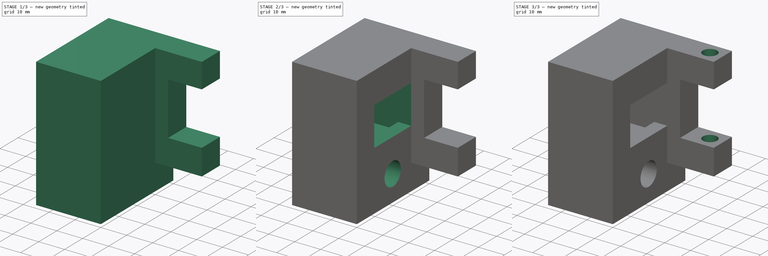
[diagram: build sequence overview — one tinted view per stage of 3, left to right]
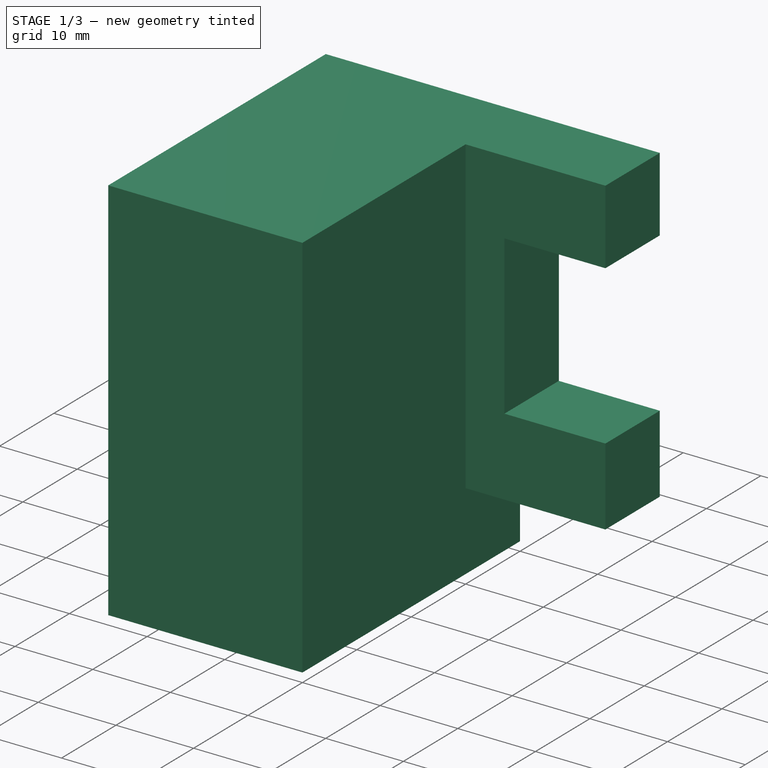
[diagram: stage 1 of 3 — iso view after this stage's code; geometry added in this stage tinted green]
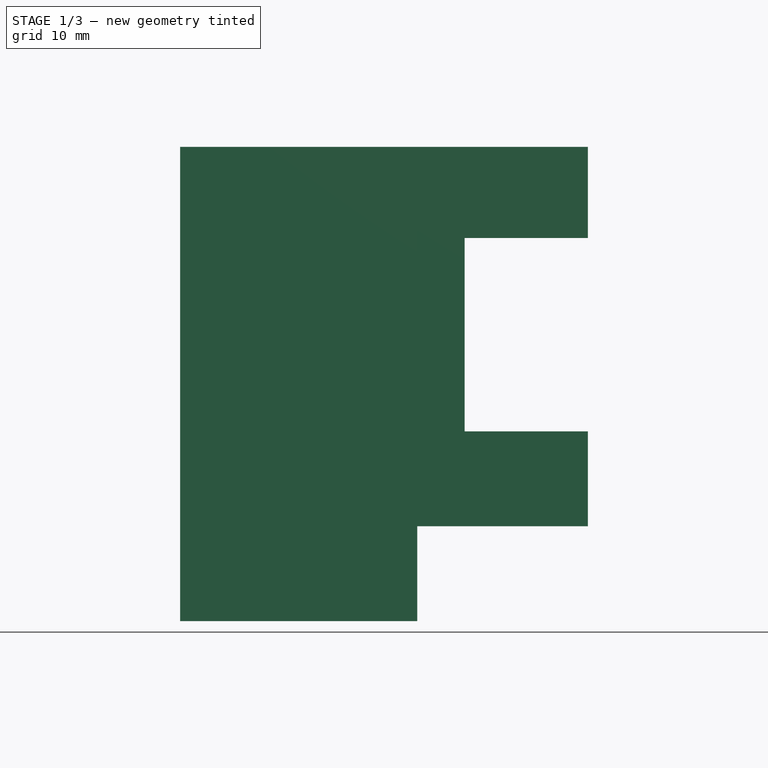
[diagram: stage 1 of 3 — front view after this stage's code; geometry added in this stage tinted green]
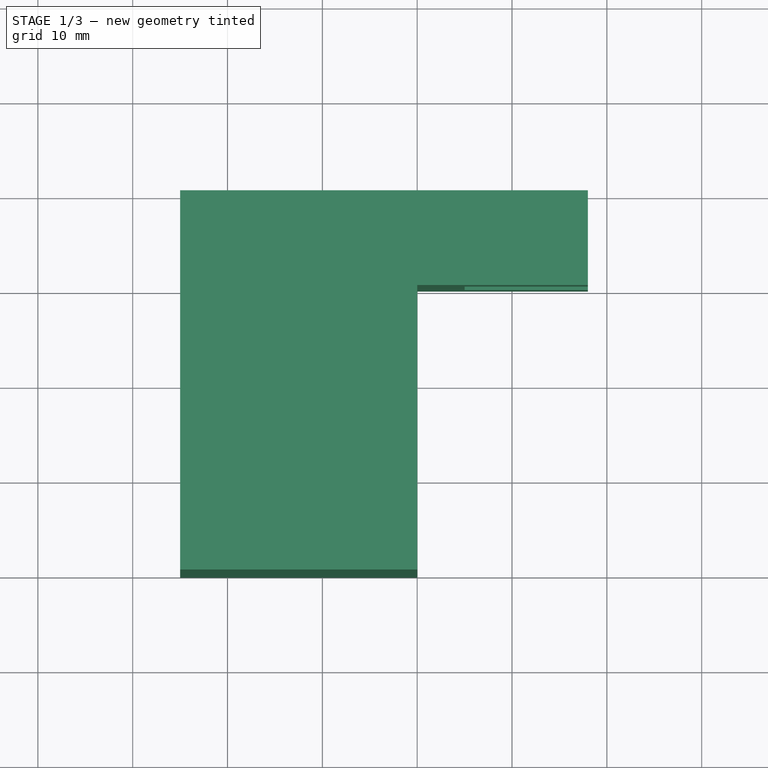
[diagram: stage 1 of 3 — top view after this stage's code; geometry added in this stage tinted green]
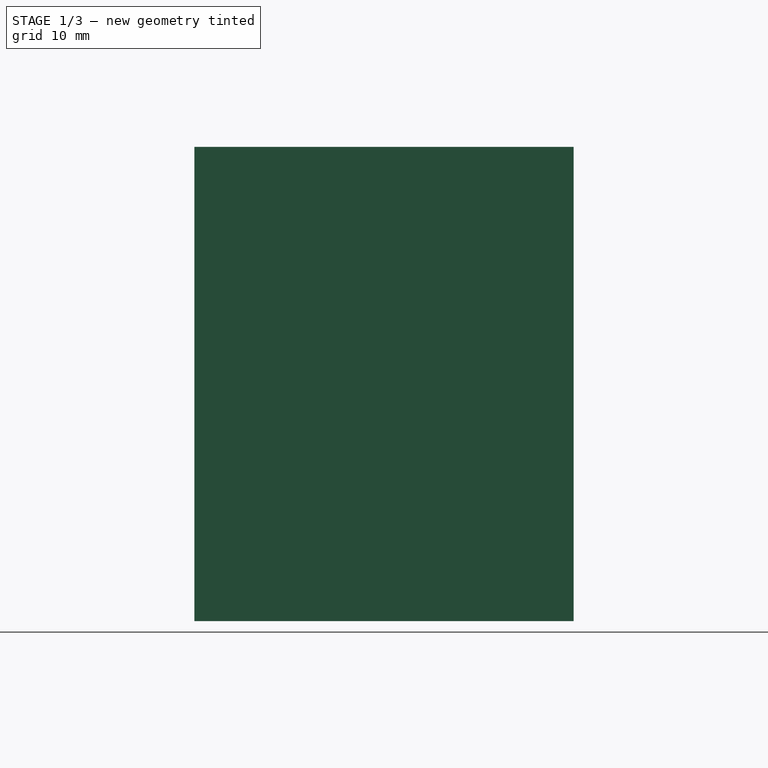
[diagram: stage 1 of 3 — right view after this stage's code; geometry added in this stage tinted green]
FCSTD DOCUMENT  (FreeCAD 0.19R24267 +148 (Git))
Label: Feed pully
License: All rights reserved
LicenseURL: http://en.wikipedia.org/wiki/All_rights_reserved
objects: Sketcher::SketchObject×6, PartDesign::Pocket×3, PartDesign::Hole×2, PartDesign::Pad×1, PartDesign::Chamfer×1, PartDesign::Body×1
note: 21 computed .brp shape members not serialized (recipe doc carries the construction recipe); baked Part::Feature solids carry a one-line shape summary decoded from their .brp

FEATURE [Sketcher::SketchObject] Sketch
  FullyConstrained = true
  MapMode = 5
  Support = -> [XY_Plane]
  sketch-geometry (6):
    g0: LineSegment StartX=0 StartY=0 StartZ=0 EndX=18 EndY=0 EndZ=0
    g1: LineSegment StartX=18 StartY=0 StartZ=0 EndX=18 EndY=10 EndZ=0
    g2: LineSegment StartX=18 StartY=10 StartZ=0 EndX=-25 EndY=10 EndZ=0
    g3: LineSegment StartX=-25 StartY=10 StartZ=0 EndX=-25 EndY=-30 EndZ=0
    g4: LineSegment StartX=-25 StartY=-30 StartZ=0 EndX=0 EndY=-30 EndZ=0
    g5: LineSegment StartX=0 StartY=-30 StartZ=0 EndX=0 EndY=0 EndZ=0
  constraints (17):
    c: Coincident(g0,g-1)
    c: PointOnObject(g0,g-1)
    c: Coincident(g1,g0)
    c: Vertical(g1)
    c: Coincident(g2,g1)
    c: Horizontal(g2)
    c: Coincident(g3,g2)
    c: Vertical(g3)
    c: Coincident(g4,g3)
    c: PointOnObject(g4,g-2)
    c: Horizontal(g4)
    c: Coincident(g5,g4)
    c: Coincident(g5,g0)
    c: DistanceY(g1,g1) = 10
    c: DistanceX(g0,g0) = 18
    c: DistanceY(g3,g3) = 40
    c: DistanceX(g4,g4) = 25
FEATURE [PartDesign::Pad] Pad
  Direction = (1,1,1)
  Length = 50
  Length2 = 100
  Profile = -> Sketch
  Type = 0
FEATURE [Sketcher::SketchObject] Sketch001
  ExternalGeometry = -> [Pad]
  FullyConstrained = true
  MapMode = 5
  Placement = pos=(0,0,0) rot=(1,0,0;1.5708rad)
  Support = -> [XZ_Plane]
  sketch-geometry (8):
    g0: LineSegment StartX=5 StartY=40.4 StartZ=0 EndX=18 EndY=40.4 EndZ=0
    g1: LineSegment StartX=18 StartY=40.4 StartZ=0 EndX=18 EndY=20 EndZ=0
    g2: LineSegment StartX=18 StartY=20 StartZ=0 EndX=5 EndY=20 EndZ=0
    g3: LineSegment StartX=5 StartY=20 StartZ=0 EndX=5 EndY=40.4 EndZ=0
    g4: LineSegment StartX=0 StartY=10 StartZ=0 EndX=18 EndY=10 EndZ=0
    g5: LineSegment StartX=18 StartY=10 StartZ=0 EndX=18 EndY=0 EndZ=0
    g6: LineSegment StartX=18 StartY=0 StartZ=0 EndX=0 EndY=0 EndZ=0
    g7: LineSegment StartX=0 StartY=0 StartZ=0 EndX=0 EndY=10 EndZ=0
  constraints (23):
    c: Coincident(g0,g1)
    c: Coincident(g1,g2)
    c: Coincident(g2,g3)
    c: Coincident(g3,g0)
    c: Horizontal(g0)
    c: Horizontal(g2)
    c: Vertical(g1)
    c: Vertical(g3)
    c: Coincident(g4,g5)
    c: Coincident(g5,g6)
    c: Coincident(g6,g7)
    c: Coincident(g7,g4)
    c: Horizontal(g4)
    c: Horizontal(g6)
    c: Vertical(g5)
    c: Vertical(g7)
    c: Coincident(g6,g-1)
    c: PointOnObject(g-3,g1)
    c: PointOnObject(g-3,g5)
    c: DistanceX(g0,g0) = 13
    c: DistanceY(g4,g1) = 10
    c: DistanceY(g1,g1) = 20.4
    c: DistanceY(g5,g1) = 20
FEATURE [PartDesign::Pocket] Pocket
  BaseFeature = -> Pad
  Length = 5
  Length2 = 100
  Profile = -> Sketch001
  Type = 1
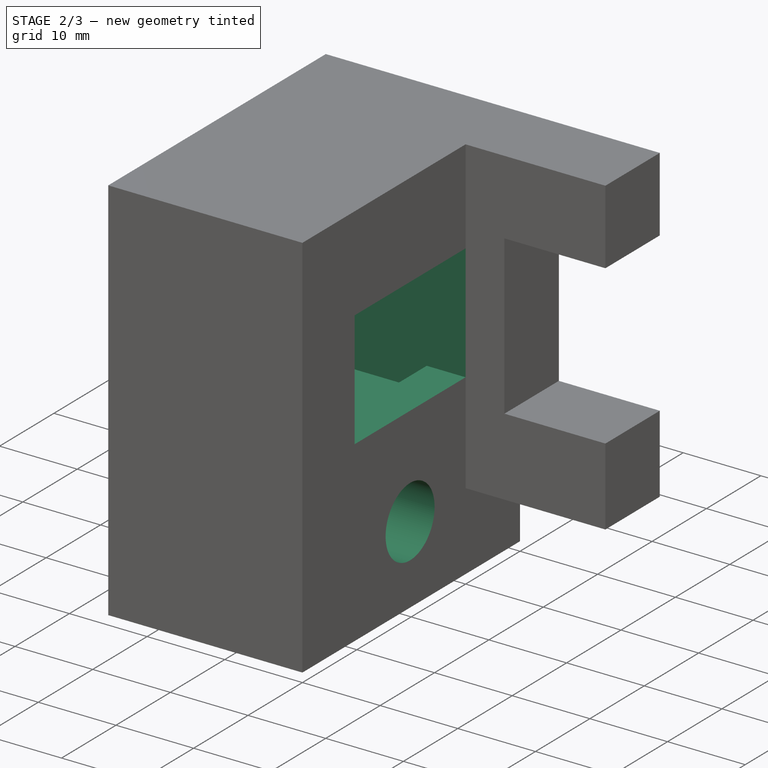
[diagram: stage 2 of 3 — iso view after this stage's code; geometry added in this stage tinted green]
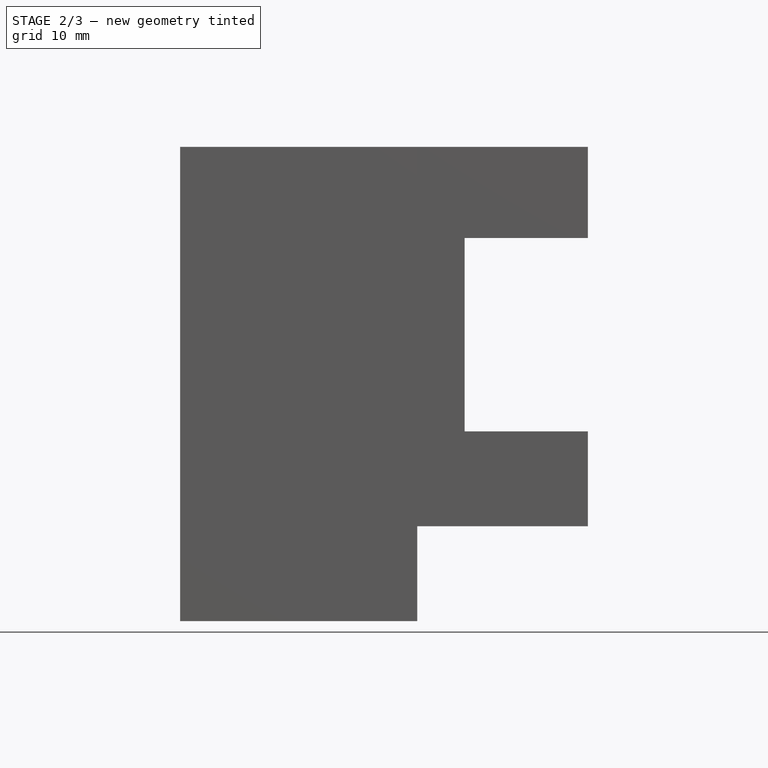
[diagram: stage 2 of 3 — front view after this stage's code; geometry added in this stage tinted green]
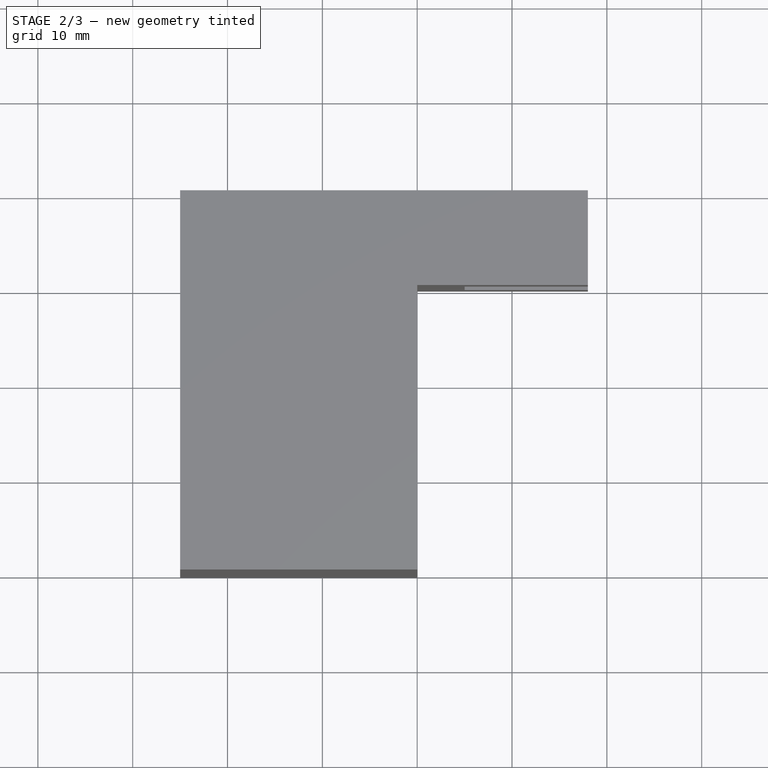
[diagram: stage 2 of 3 — top view after this stage's code; geometry added in this stage tinted green]
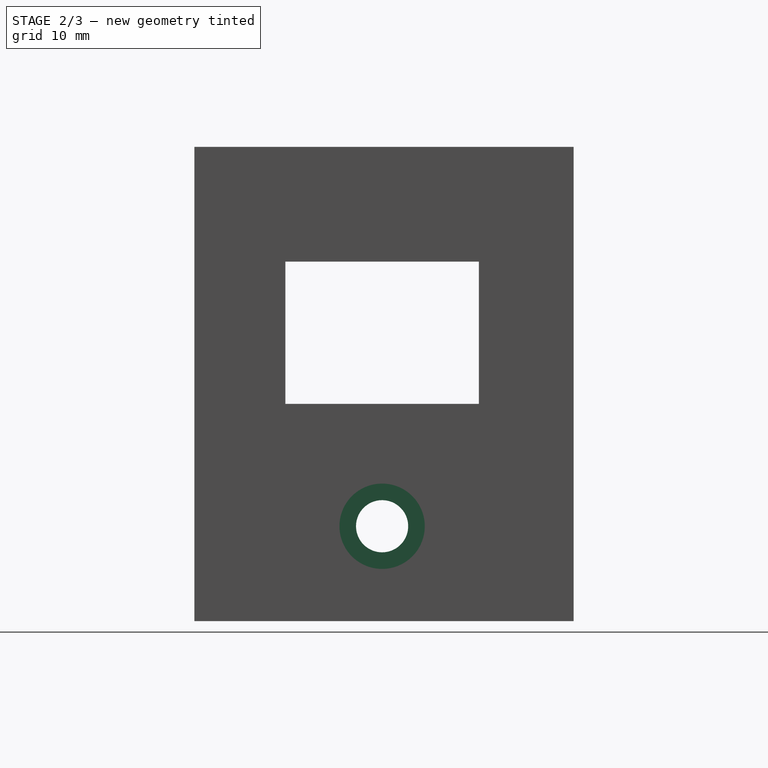
[diagram: stage 2 of 3 — right view after this stage's code; geometry added in this stage tinted green]
FEATURE [Sketcher::SketchObject] Sketch002
  FullyConstrained = true
  MapMode = 5
  Placement = pos=(-25,0,0) rot=(0.57735,-0.57735,-0.57735;2.0944rad)
  Support = -> [Pocket]
  sketch-geometry (4):
    g0: LineSegment StartX=0 StartY=40.4 StartZ=0 EndX=20.4 EndY=40.4 EndZ=0
    g1: LineSegment StartX=20.4 StartY=40.4 StartZ=0 EndX=20.4 EndY=20 EndZ=0
    g2: LineSegment StartX=20.4 StartY=20 StartZ=0 EndX=0 EndY=20 EndZ=0
    g3: LineSegment StartX=0 StartY=20 StartZ=0 EndX=0 EndY=40.4 EndZ=0
  constraints (12):
    c: Coincident(g0,g1)
    c: Coincident(g1,g2)
    c: Coincident(g2,g3)
    c: Coincident(g3,g0)
    c: Horizontal(g0)
    c: Horizontal(g2)
    c: Vertical(g1)
    c: Vertical(g3)
    c: PointOnObject(g-1,g3)
    c: DistanceY(g3,g3) = 20.4
    c: Equal(g0,g3)
    c: DistanceY(g-1,g2) = 20
FEATURE [PartDesign::Pocket] Pocket001  label="Pocket Vslot"
  BaseFeature = -> Pocket
  Length = 20
  Length2 = 100
  Profile = -> Sketch002
  Type = 0
FEATURE [Sketcher::SketchObject] Sketch003
  ExternalGeometry = -> [Pocket001]
  FullyConstrained = true
  MapMode = 5
  Placement = pos=(0,0,0) rot=(0.57735,0.57735,0.57735;2.0944rad)
  Support = -> [YZ_Plane]
  sketch-geometry (4):
    g0: LineSegment StartX=-20.4 StartY=37.9 StartZ=0 EndX=0 EndY=37.9 EndZ=0
    g1: LineSegment StartX=0 StartY=37.9 StartZ=0 EndX=0 EndY=22.9 EndZ=0
    g2: LineSegment StartX=0 StartY=22.9 StartZ=0 EndX=-20.4 EndY=22.9 EndZ=0
    g3: LineSegment StartX=-20.4 StartY=22.9 StartZ=0 EndX=-20.4 EndY=37.9 EndZ=0
  constraints (12):
    c: Coincident(g0,g1)
    c: Coincident(g1,g2)
    c: Coincident(g2,g3)
    c: Coincident(g3,g0)
    c: Horizontal(g0)
    c: Horizontal(g2)
    c: Vertical(g1)
    c: Vertical(g3)
    c: PointOnObject(g-1,g1)
    c: PointOnObject(g-3,g3)
    c: DistanceY(g0,g-3) = 2.5
    c: DistanceY(g3,g3) = 15
FEATURE [PartDesign::Pocket] Pocket002  label="Pocket Vslot stop"
  BaseFeature = -> Pocket001
  Length = 5
  Length2 = 100
  Profile = -> Sketch003
  Type = 0
FEATURE [Sketcher::SketchObject] Sketch004
  ExternalGeometry = -> [Pocket002]
  FullyConstrained = false
  MapMode = 5
  Placement = pos=(0,0,0) rot=(0.57735,0.57735,0.57735;2.0944rad)
  Support = -> [YZ_Plane]
  sketch-geometry (3):
    g0: LineSegment StartX=-20.4 StartY=20 StartZ=0 EndX=-10.2 EndY=10 EndZ=0
    g1: LineSegment StartX=-10.2 StartY=10 StartZ=0 EndX=-1.07e-14 EndY=20 EndZ=0
    g2: Circle CenterX=-10.2 CenterY=10 CenterZ=0 NormalX=0 NormalY=0 NormalZ=1 AngleXU=0 Radius=2.6073
  constraints (6):
    c: Coincident(g0,g-3)
    c: Coincident(g1,g0)
    c: Coincident(g1,g-3)
    c: Coincident(g2,g0)
    c: Equal(g1,g0)
    c: DistanceY(g0,g0) = 10
FEATURE [PartDesign::Hole] Hole  label="Hole Vslot2 mount"
  BaseFeature = -> Pocket002
  Depth = 25
  DepthType = 1
  Diameter = 5.5
  DrillForDepth = false
  DrillPoint = 1
  DrillPointAngle = 118
  HoleCutCountersinkAngle = 90
  HoleCutCustomValues = false
  HoleCutDepth = 20
  HoleCutDiameter = 9
  HoleCutType = 1
  ModelActualThread = false
  Profile = -> Sketch004
  Tapered = false
  TaperedAngle = 90
  ThreadAngle = 0
  ThreadClass = 0
  ThreadCutOffInner = 0
  ThreadCutOffOuter = 0
  ThreadDirection = 0
  ThreadFit = 0
  ThreadPitch = 0
  ThreadSize = 0
  ThreadType = 0
  Threaded = false
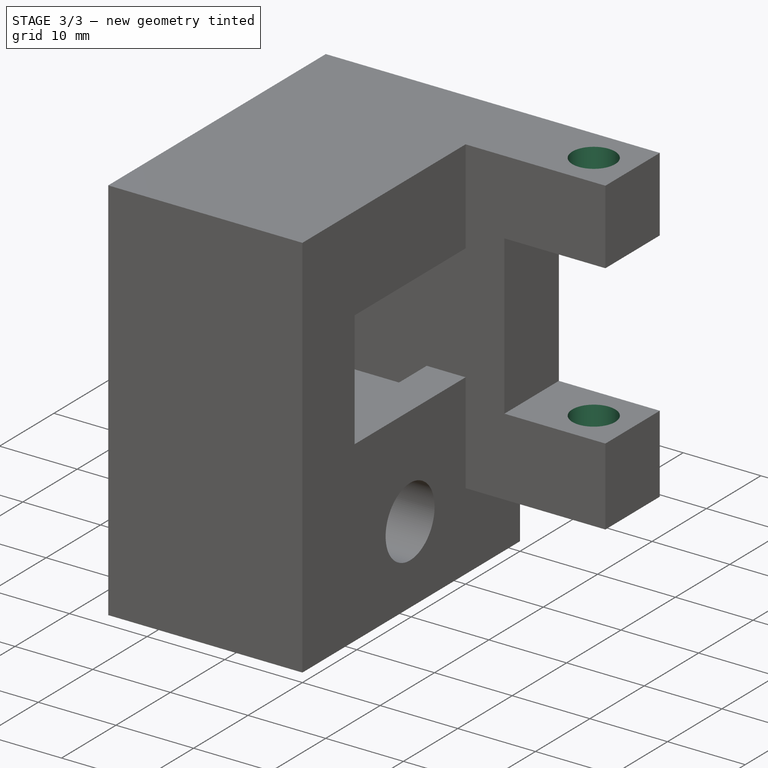
[diagram: stage 3 of 3 — iso view after this stage's code; geometry added in this stage tinted green]
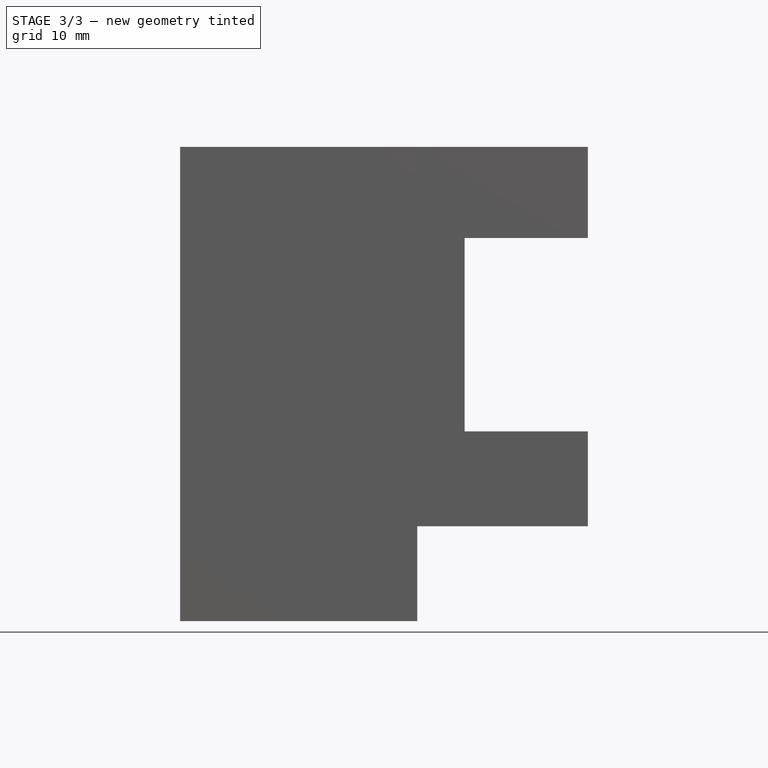
[diagram: stage 3 of 3 — front view after this stage's code; geometry added in this stage tinted green]
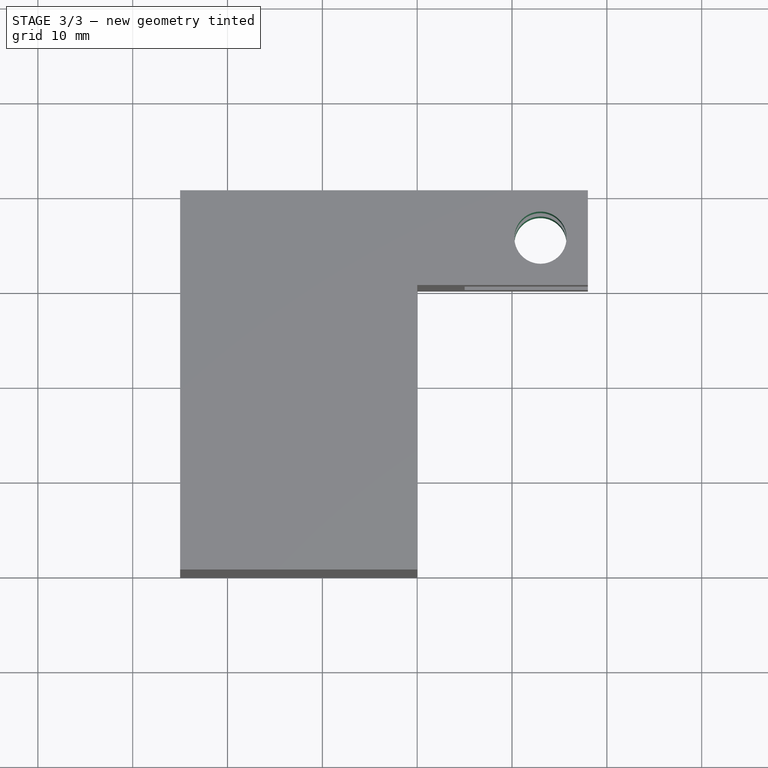
[diagram: stage 3 of 3 — top view after this stage's code; geometry added in this stage tinted green]
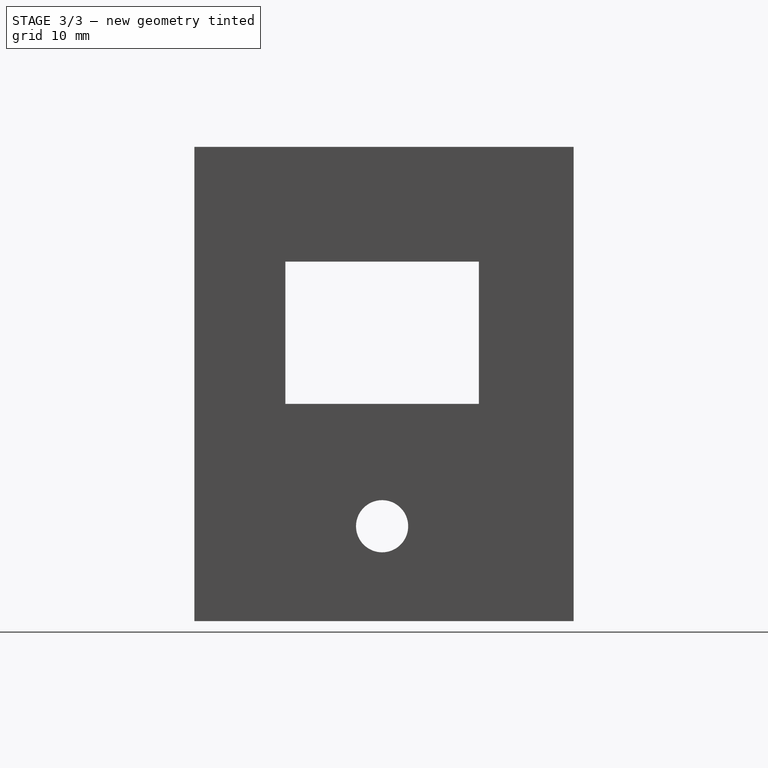
[diagram: stage 3 of 3 — right view after this stage's code; geometry added in this stage tinted green]
FEATURE [Sketcher::SketchObject] Sketch005
  ExternalGeometry = -> [Hole]
  FullyConstrained = false
  MapMode = 5
  Support = -> [XY_Plane]
  sketch-geometry (4):
    g0: LineSegment StartX=18 StartY=10 StartZ=0 EndX=18 EndY=5 EndZ=0
    g1: LineSegment StartX=18 StartY=5 StartZ=0 EndX=18 EndY=0 EndZ=0
    g2: LineSegment StartX=18 StartY=5 StartZ=0 EndX=13 EndY=5 EndZ=0
    g3: Circle CenterX=13 CenterY=5 CenterZ=0 NormalX=0 NormalY=0 NormalZ=1 AngleXU=0 Radius=1.4477
  constraints (9):
    c: Coincident(g0,g-3)
    c: Coincident(g1,g0)
    c: Coincident(g1,g-3)
    c: Coincident(g2,g0)
    c: Perpendicular(g0,g2)
    c: Equal(g0,g1)
    c: Parallel(g0,g1)
    c: Equal(g2,g0)
    c: Coincident(g3,g2)
FEATURE [PartDesign::Hole] Hole001
  BaseFeature = -> Hole
  Depth = 25
  DepthType = 1
  Diameter = 5.5
  DrillForDepth = false
  DrillPoint = 1
  DrillPointAngle = 118
  HoleCutCountersinkAngle = 90
  HoleCutCustomValues = false
  HoleCutDepth = 0
  HoleCutDiameter = 6.1
  HoleCutType = 0
  ModelActualThread = false
  Profile = -> Sketch005
  Reversed = true
  Tapered = false
  TaperedAngle = 90
  ThreadAngle = 0
  ThreadClass = 0
  ThreadCutOffInner = 0
  ThreadCutOffOuter = 0
  ThreadDirection = 0
  ThreadFit = 0
  ThreadPitch = 0
  ThreadSize = 0
  ThreadType = 0
  Threaded = false
FEATURE [PartDesign::Chamfer] Chamfer
  Angle = 45
  Base = -> Hole001 [Edge51,Edge52,Edge54,Edge53]
  BaseFeature = -> Hole001
  ChamferType = 0
  FlipDirection = false
  Size = 1
  Size2 = 1
  SupportTransform = false
FEATURE [PartDesign::Body] Body
  Group = -> [Sketch,Pad,Sketch001,Pocket,Sketch002,Pocket001,Sketch003,Pocket002,Sketch004,Hole,Sketch005,Hole001,Chamfer]
  Origin = -> Origin
  Tip = -> Chamfer
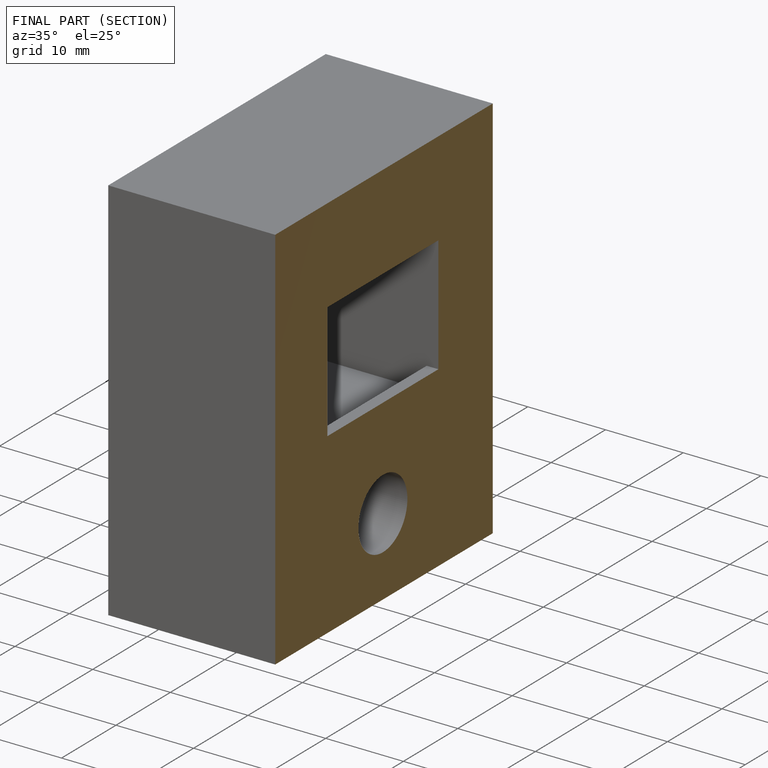
[diagram: finished part — half-section view (interior)]
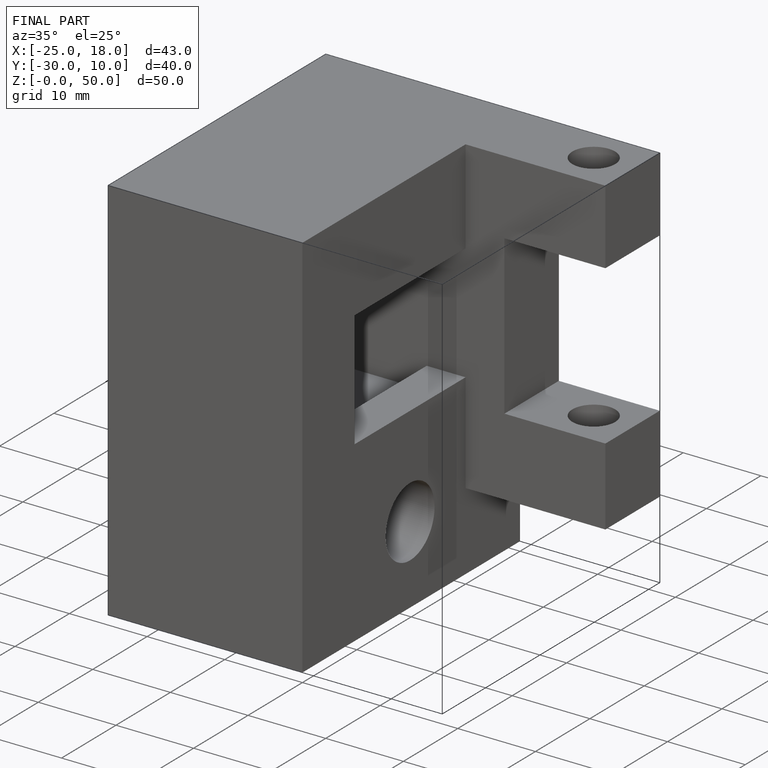
[diagram: finished part — iso view with bounding-box wireframe]
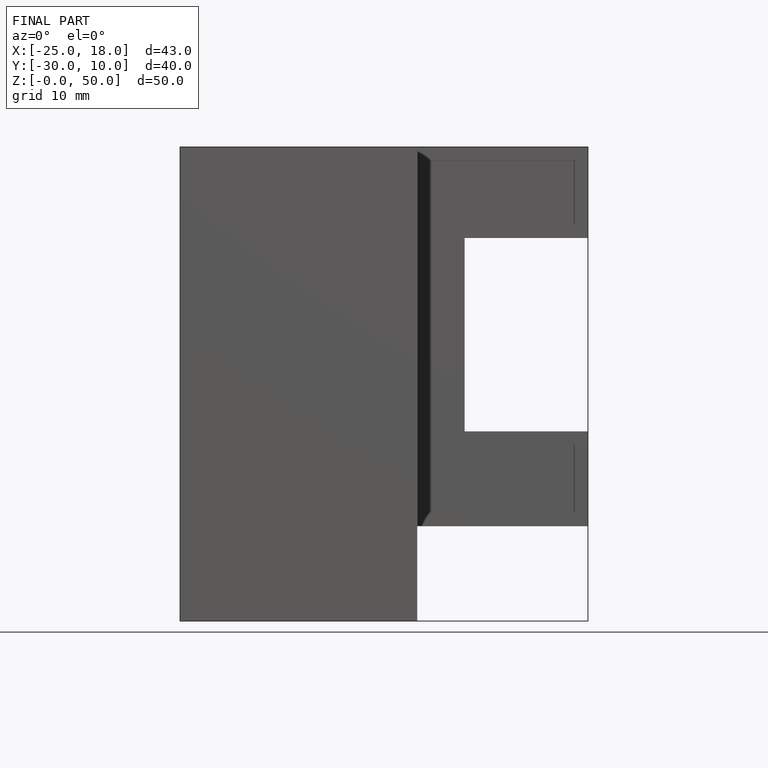
[diagram: finished part — front view with bounding-box wireframe]
